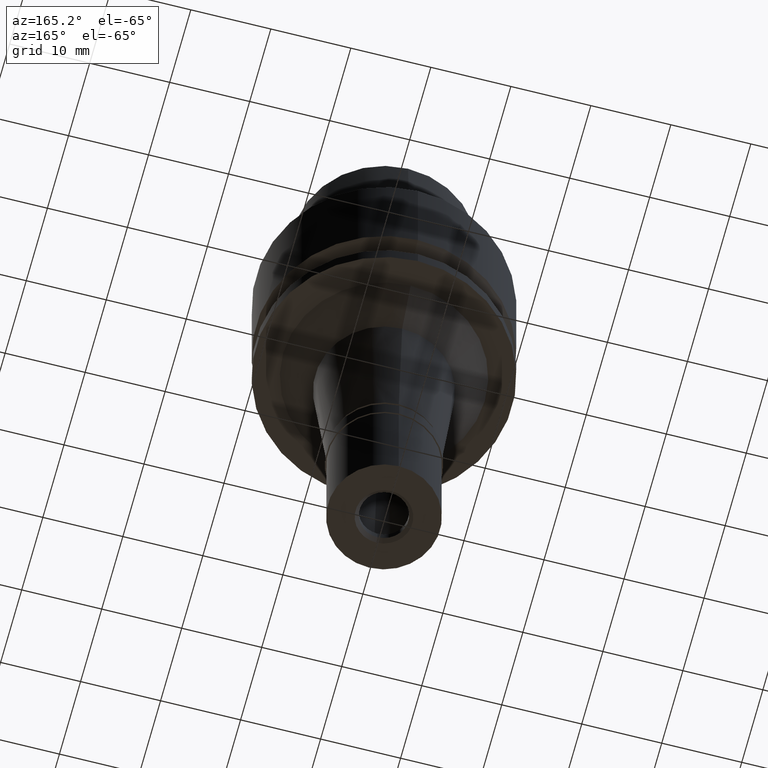
[diagram: clean part render]
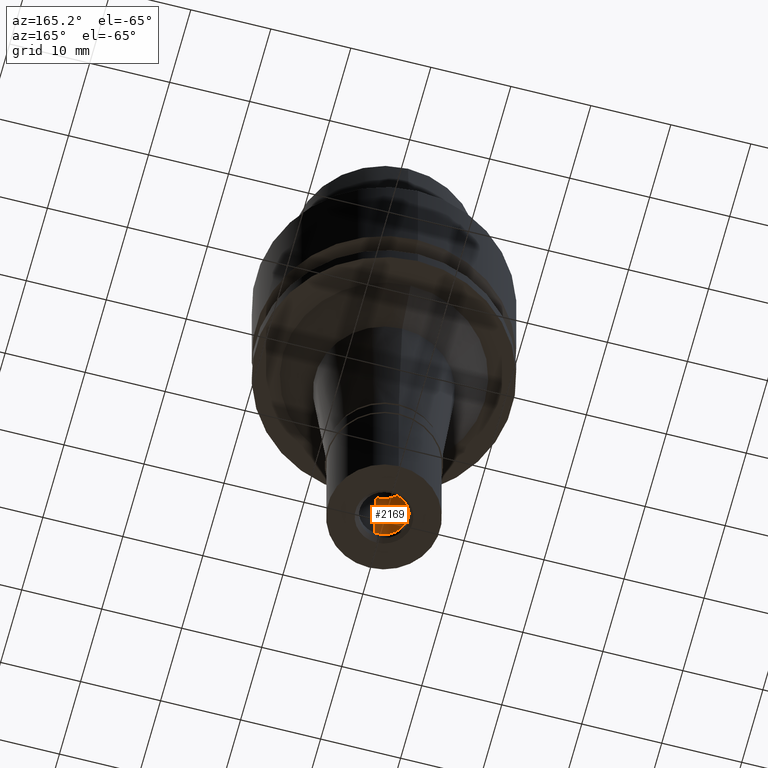
[diagram: same view with one face highlighted and labeled with its STEP entity id]
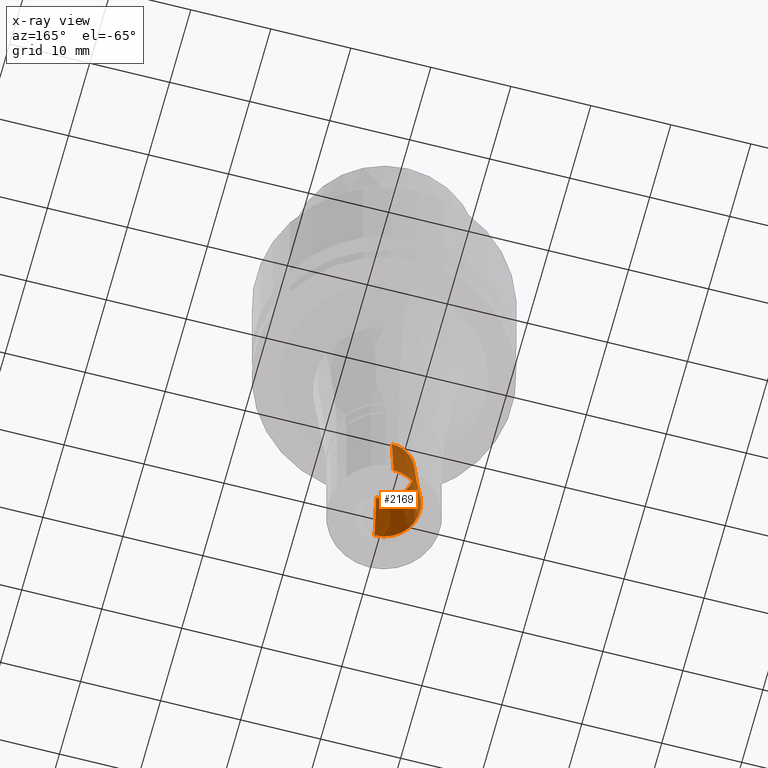
[diagram: x-ray of the same camera — body ghosted, the highlighted face saturated]
A machine part, auxiliary view. The second image highlights one B-rep face of the part: STEP entity #2169.
The next image is the same camera in x-ray: the body ghosted, the highlighted face saturated — about 9% of this face is hidden behind the body in this view.
In plain terms, the highlighted conical surface has half-angle 5 deg.
Its self-contained STEP definition (entity closure, byte-faithful):
#40 = CARTESIAN_POINT ( 'NONE',  ( 0.0000000000000000000, -4.500000000000000000, -56.00000000000000000 ) ) ;
#137 = DIRECTION ( 'NONE',  ( 0.0000000000000000000, -1.000000000000000000, 0.0000000000000000000 ) ) ;
#158 = CARTESIAN_POINT ( 'NONE',  ( 0.0000000000000000000, 3.700000000000000178, -46.85595815778999906 ) ) ;
#165 = CIRCLE ( 'NONE', #2043, 3.700000000000000178 ) ;
#181 = CARTESIAN_POINT ( 'NONE',  ( 0.0000000000000000000, -3.700000000000000178, -46.85595815778999906 ) ) ;
#204 = DIRECTION ( 'NONE',  ( 0.0000000000000000000, -1.000000000000000000, 0.0000000000000000000 ) ) ;
#397 = ORIENTED_EDGE ( 'NONE', *, *, #2372, .F. ) ;
#414 = VERTEX_POINT ( 'NONE', #2212 ) ;
#567 = CARTESIAN_POINT ( 'NONE',  ( 0.0000000000000000000, 0.0000000000000000000, -46.85595815778999906 ) ) ;
#582 = FACE_OUTER_BOUND ( 'NONE', #2287, .T. ) ;
#757 = LINE ( 'NONE', #2267, #2418 ) ;
#785 = DIRECTION ( 'NONE',  ( 0.0000000000000000000, -0.08715574274765398866, 0.9961946980917458783 ) ) ;
#820 = CARTESIAN_POINT ( 'NONE',  ( 0.0000000000000000000, 0.0000000000000000000, -51.42797907889999465 ) ) ;
#836 = DIRECTION ( 'NONE',  ( 0.0000000000000000000, 0.0000000000000000000, -1.000000000000000000 ) ) ;
#912 = ORIENTED_EDGE ( 'NONE', *, *, #2590, .F. ) ;
#1032 = ORIENTED_EDGE ( 'NONE', *, *, #1516, .T. ) ;
#1036 = CARTESIAN_POINT ( 'NONE',  ( 0.0000000000000000000, 0.0000000000000000000, -56.00000000000000000 ) ) ;
#1149 = CARTESIAN_POINT ( 'NONE',  ( 0.0000000000000000000, -4.500000000000000000, -56.00000000000000000 ) ) ;
#1283 = ORIENTED_EDGE ( 'NONE', *, *, #1341, .T. ) ;
#1341 = EDGE_CURVE ( 'NONE', #414, #1888, #757, .T. ) ;
#1404 = VERTEX_POINT ( 'NONE', #181 ) ;
#1495 = AXIS2_PLACEMENT_3D ( 'NONE', #1036, #2513, #204 ) ;
#1506 = CONICAL_SURFACE ( 'NONE', #1780, 4.100000000000000533, 0.08726646259969973729 ) ;
#1516 = EDGE_CURVE ( 'NONE', #1818, #414, #2273, .T. ) ;
#1526 = LINE ( 'NONE', #40, #1641 ) ;
#1641 = VECTOR ( 'NONE', #2157, 1000.000000000000000 ) ;
#1683 = DIRECTION ( 'NONE',  ( 0.0000000000000000000, -1.000000000000000000, 0.0000000000000000000 ) ) ;
#1780 = AXIS2_PLACEMENT_3D ( 'NONE', #820, #836, #1683 ) ;
#1818 = VERTEX_POINT ( 'NONE', #1149 ) ;
#1888 = VERTEX_POINT ( 'NONE', #158 ) ;
#2015 = DIRECTION ( 'NONE',  ( 0.0000000000000000000, 0.0000000000000000000, -1.000000000000000000 ) ) ;
#2043 = AXIS2_PLACEMENT_3D ( 'NONE', #567, #2015, #137 ) ;
#2157 = DIRECTION ( 'NONE',  ( 0.0000000000000000000, 0.08715574274765398866, 0.9961946980917458783 ) ) ;
#2169 = ADVANCED_FACE ( 'NONE', ( #582 ), #1506, .F. ) ;
#2212 = CARTESIAN_POINT ( 'NONE',  ( 0.0000000000000000000, 4.500000000000000000, -56.00000000000000000 ) ) ;
#2267 = CARTESIAN_POINT ( 'NONE',  ( 0.0000000000000000000, 4.500000000000000000, -56.00000000000000000 ) ) ;
#2273 = CIRCLE ( 'NONE', #1495, 4.500000000000000000 ) ;
#2287 = EDGE_LOOP ( 'NONE', ( #912, #397, #1032, #1283 ) ) ;
#2372 = EDGE_CURVE ( 'NONE', #1818, #1404, #1526, .T. ) ;
#2418 = VECTOR ( 'NONE', #785, 1000.000000000000000 ) ;
#2513 = DIRECTION ( 'NONE',  ( 0.0000000000000000000, 0.0000000000000000000, -1.000000000000000000 ) ) ;
#2590 = EDGE_CURVE ( 'NONE', #1404, #1888, #165, .T. ) ;